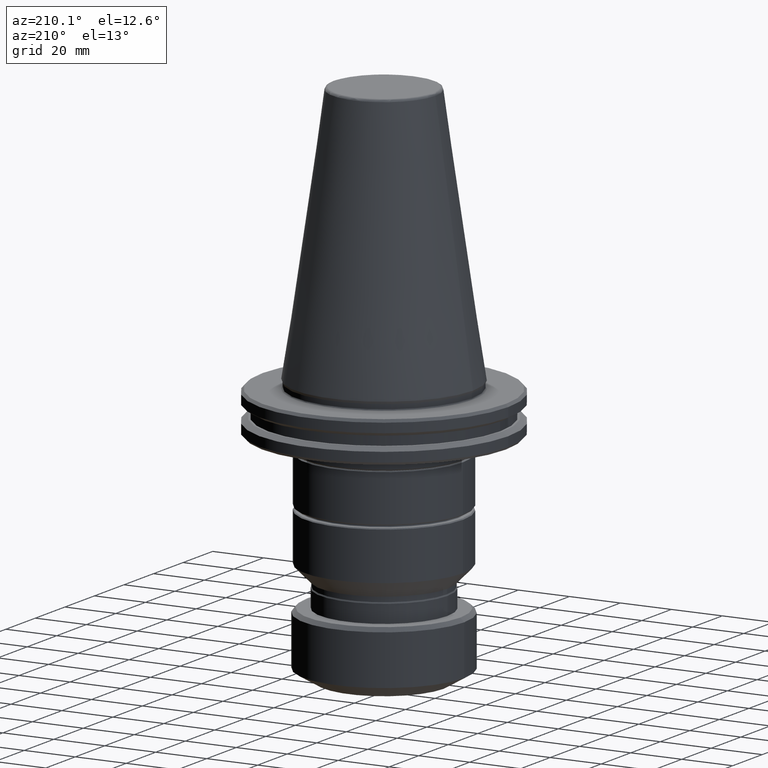
[diagram: clean part render]
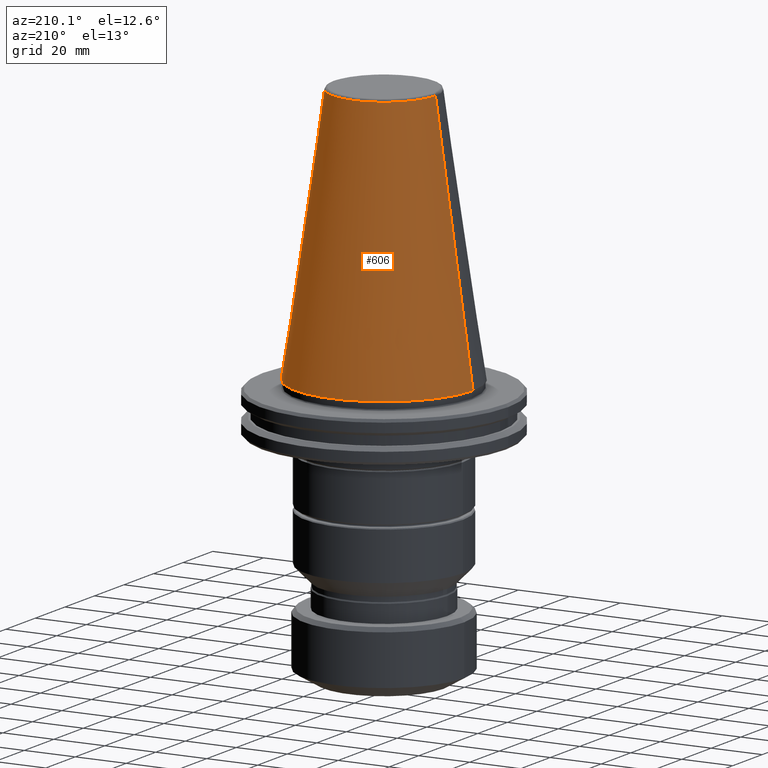
[diagram: same view with one face highlighted and labeled with its STEP entity id]
A machine part, auxiliary view. The second image highlights one B-rep face of the part: STEP entity #606.
In plain terms, the highlighted conical surface has half-angle 8.297 deg.
Its self-contained STEP definition (entity closure, byte-faithful):
#41 = ORIENTED_EDGE ( 'NONE', *, *, #1036, .T. ) ;
#111 = DIRECTION ( 'NONE',  ( -1.000000000000000000, 0.0000000000000000000, 0.0000000000000000000 ) ) ;
#116 = DIRECTION ( 'NONE',  ( -0.0000000000000000000, -0.0000000000000000000, 1.000000000000000000 ) ) ;
#119 = CARTESIAN_POINT ( 'NONE',  ( 0.0000000000000000000, 0.0000000000000000000, 0.0000000000000000000 ) ) ;
#175 = EDGE_CURVE ( 'NONE', #434, #1541, #675, .T. ) ;
#211 = DIRECTION ( 'NONE',  ( -1.000000000000000000, 0.0000000000000000000, 0.0000000000000000000 ) ) ;
#328 = AXIS2_PLACEMENT_3D ( 'NONE', #119, #116, #111 ) ;
#332 = ORIENTED_EDGE ( 'NONE', *, *, #175, .T. ) ;
#373 = CARTESIAN_POINT ( 'NONE',  ( 0.0000000000000000000, 0.0000000000000000000, 100.8943082272673000 ) ) ;
#385 = CIRCLE ( 'NONE', #1459, 20.21110778703758000 ) ;
#434 = VERTEX_POINT ( 'NONE', #846 ) ;
#460 = CARTESIAN_POINT ( 'NONE',  ( 34.92499999999999700, 4.277078946022130900E-015, 0.0000000000000000000 ) ) ;
#508 = DIRECTION ( 'NONE',  ( -0.1443082272673069400, 0.0000000000000000000, -0.9895327864921743500 ) ) ;
#584 = CARTESIAN_POINT ( 'NONE',  ( -34.92499999999999700, 0.0000000000000000000, -1.387778780781445700E-014 ) ) ;
#606 = ADVANCED_FACE ( 'NONE', ( #1437 ), #1229, .T. ) ;
#675 = LINE ( 'NONE', #1941, #974 ) ;
#692 = DIRECTION ( 'NONE',  ( 0.0000000000000000000, 0.0000000000000000000, -1.000000000000000000 ) ) ;
#720 = DIRECTION ( 'NONE',  ( -1.000000000000000000, 0.0000000000000000000, 0.0000000000000000000 ) ) ;
#723 = EDGE_CURVE ( 'NONE', #1472, #1911, #1805, .T. ) ;
#746 = CARTESIAN_POINT ( 'NONE',  ( 0.0000000000000000000, 0.0000000000000000000, -1.387778780781445700E-014 ) ) ;
#846 = CARTESIAN_POINT ( 'NONE',  ( 20.21110778703758000, 3.376112895941951000E-015, 100.8943082272673000 ) ) ;
#908 = ORIENTED_EDGE ( 'NONE', *, *, #723, .F. ) ;
#953 = VECTOR ( 'NONE', #508, 1000.000000000000000 ) ;
#974 = VECTOR ( 'NONE', #2069, 1000.000000000000000 ) ;
#1036 = EDGE_CURVE ( 'NONE', #1541, #1911, #1584, .T. ) ;
#1138 = AXIS2_PLACEMENT_3D ( 'NONE', #746, #692, #720 ) ;
#1229 = CONICAL_SURFACE ( 'NONE', #1138, 34.92499999999999700, 0.1448138465474189400 ) ;
#1278 = CARTESIAN_POINT ( 'NONE',  ( -34.92499999999999700, 0.0000000000000000000, 0.0000000000000000000 ) ) ;
#1357 = DIRECTION ( 'NONE',  ( 0.0000000000000000000, 0.0000000000000000000, -1.000000000000000000 ) ) ;
#1437 = FACE_OUTER_BOUND ( 'NONE', #2018, .T. ) ;
#1459 = AXIS2_PLACEMENT_3D ( 'NONE', #373, #1357, #211 ) ;
#1472 = VERTEX_POINT ( 'NONE', #1837 ) ;
#1482 = EDGE_CURVE ( 'NONE', #1472, #434, #385, .T. ) ;
#1541 = VERTEX_POINT ( 'NONE', #460 ) ;
#1584 = CIRCLE ( 'NONE', #328, 34.92499999999999700 ) ;
#1805 = LINE ( 'NONE', #584, #953 ) ;
#1837 = CARTESIAN_POINT ( 'NONE',  ( -20.21110778703758000, 0.0000000000000000000, 100.8943082272673000 ) ) ;
#1887 = ORIENTED_EDGE ( 'NONE', *, *, #1482, .T. ) ;
#1911 = VERTEX_POINT ( 'NONE', #1278 ) ;
#1941 = CARTESIAN_POINT ( 'NONE',  ( 34.92499999999999700, 4.277078946022130900E-015, -1.387778780781445700E-014 ) ) ;
#2018 = EDGE_LOOP ( 'NONE', ( #1887, #332, #41, #908 ) ) ;
#2069 = DIRECTION ( 'NONE',  ( 0.1443082272673069400, 1.767266086135362400E-017, -0.9895327864921743500 ) ) ;